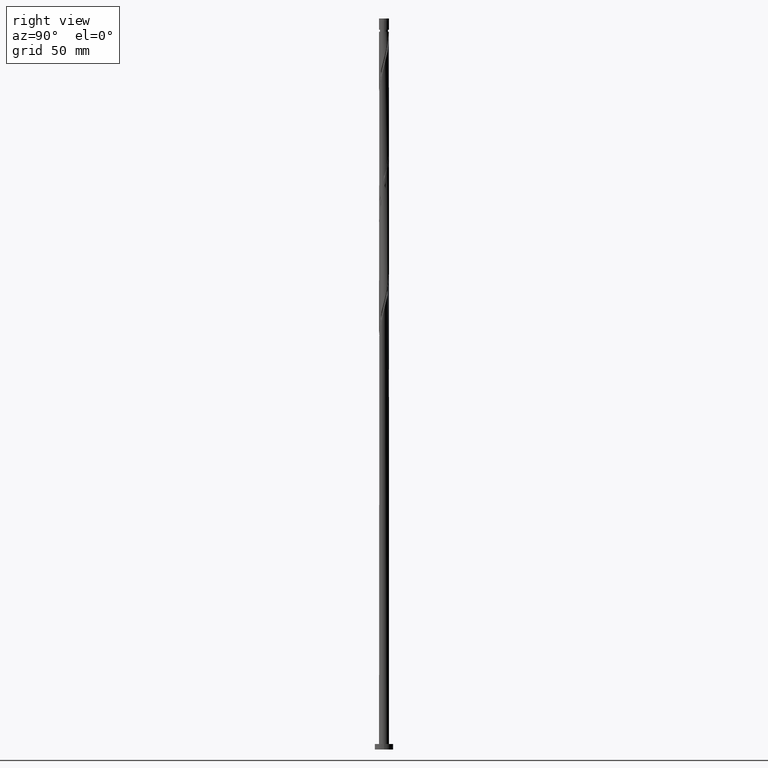
[diagram: clean part render]
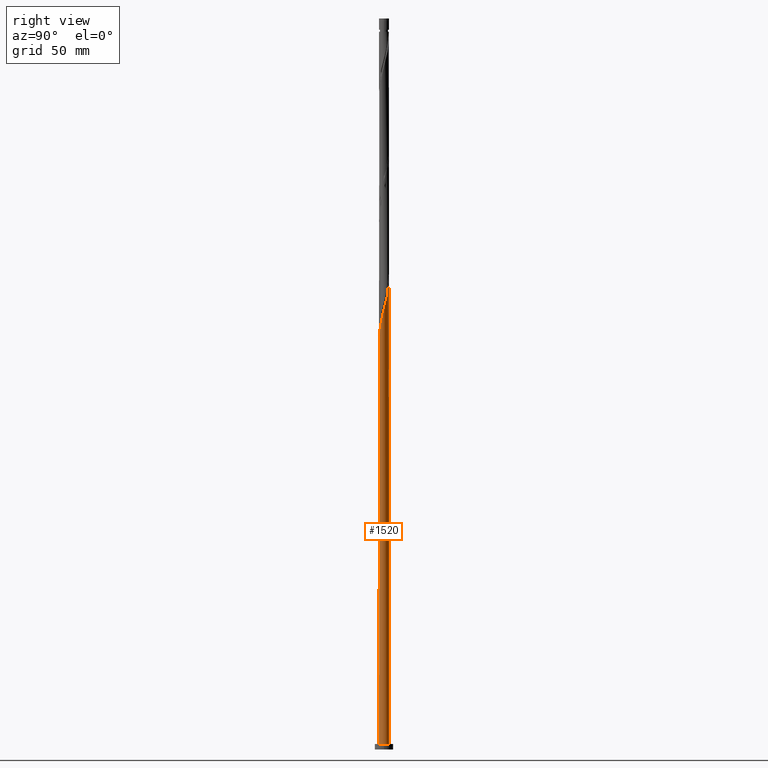
[diagram: same view with one face highlighted and labeled with its STEP entity id]
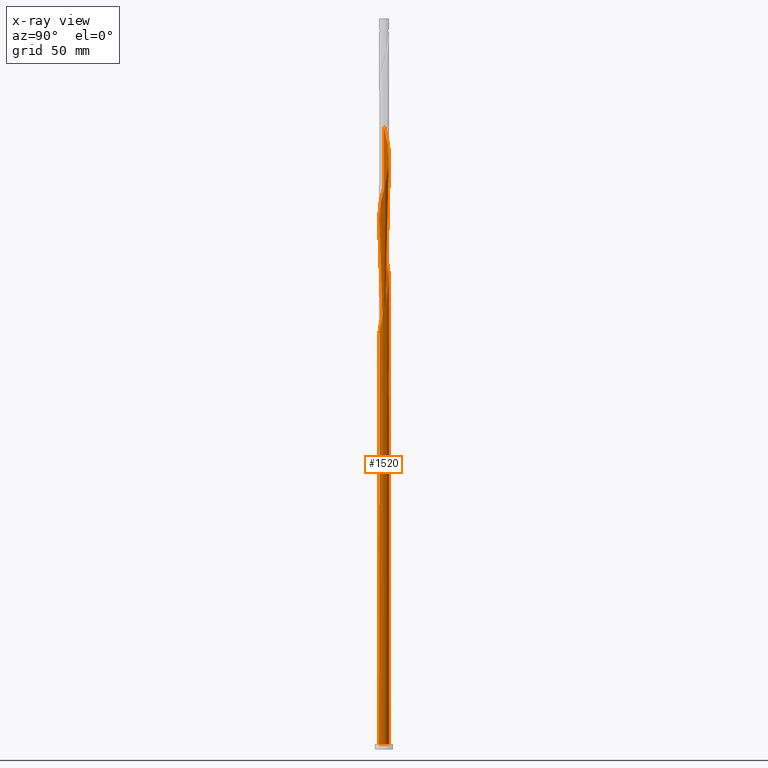
[diagram: x-ray of the same camera — body ghosted, the highlighted face saturated]
A machine part, right view. The second image highlights one B-rep face of the part: STEP entity #1520.
The next image is the same camera in x-ray: the body ghosted, the highlighted face saturated — about 0% of this face is hidden behind the body in this view.
In plain terms, the highlighted cylindrical surface (bore or boss wall) has radius 2.75 mm, axis along (-0, -0, -1).
Its self-contained STEP definition (entity closure, byte-faithful):
#3 = CARTESIAN_POINT ( 'NONE',  ( -2.709844813423679444, -0.5502574583398188723, 276.1119434343397074 ) ) ;
#17 = CARTESIAN_POINT ( 'NONE',  ( -1.141352294733356976, -2.501962217801643629, 286.1119434343396506 ) ) ;
#28 = CARTESIAN_POINT ( 'NONE',  ( 1.404319120299016177, 2.382001257694969620, 251.6674989898952788 ) ) ;
#31 = CARTESIAN_POINT ( 'NONE',  ( -1.831459344255980115, 2.071665719568499320, 198.3341656565619076 ) ) ;
#36 = CARTESIAN_POINT ( 'NONE',  ( 2.607560008403387197, -0.8735735816606113868, 237.2230545454507649 ) ) ;
#38 = CARTESIAN_POINT ( 'NONE',  ( -2.699376291652123783, 0.5995079810680117305, 205.0008323232285647 ) ) ;
#44 = CARTESIAN_POINT ( 'NONE',  ( 2.765033161159833774, -0.02517540435167804971, 307.2230545454508501 ) ) ;
#45 = CARTESIAN_POINT ( 'NONE',  ( -1.095606522655231618, 2.522329547762411028, 195.0008323232285647 ) ) ;
#59 = FACE_OUTER_BOUND ( 'NONE', #1684, .T. ) ;
#61 = VERTEX_POINT ( 'NONE', #287 ) ;
#71 = CARTESIAN_POINT ( 'NONE',  ( -1.360714040860819596, 2.407176662046646598, 329.4452767676729650 ) ) ;
#94 = CARTESIAN_POINT ( 'NONE',  ( 2.750000000000000000, 0.000000000000000000, 3.000000000000000000 ) ) ;
#110 = CARTESIAN_POINT ( 'NONE',  ( 0.8304990044496428636, -2.637482433478177235, 227.2230545454507649 ) ) ;
#117 = CARTESIAN_POINT ( 'NONE',  ( -2.750000000000003109, -0.1315709980385585121, 207.8283820497155716 ) ) ;
#132 = CARTESIAN_POINT ( 'NONE',  ( -2.251756548787004153, -1.604878384268619618, 213.8897212121174789 ) ) ;
#133 = AXIS2_PLACEMENT_3D ( 'NONE', #310, #507, #912 ) ;
#143 = CARTESIAN_POINT ( 'NONE',  ( -0.3140621580726320472, -2.747254473863784074, 222.7786101010063362 ) ) ;
#159 = CARTESIAN_POINT ( 'NONE',  ( -2.732204726405978334, 0.3123416927098441320, 272.7786101010063362 ) ) ;
#168 = CARTESIAN_POINT ( 'NONE',  ( 1.831459344255979671, -2.071665719568499320, 298.3341656565619360 ) ) ;
#181 = CARTESIAN_POINT ( 'NONE',  ( -0.5472430904086448278, 2.695000000000002505, 259.4452767676730218 ) ) ;
#191 = CARTESIAN_POINT ( 'NONE',  ( 2.699376291652122450, -0.5995079810680130628, 305.0008323232285647 ) ) ;
#200 = CARTESIAN_POINT ( 'NONE',  ( -2.737438987291756831, -0.2625410269940704477, 275.0008323232286784 ) ) ;
#202 = CARTESIAN_POINT ( 'NONE',  ( -0.8304990044496439738, 2.637482433478177235, 193.8897212121174221 ) ) ;
#205 = VERTEX_POINT ( 'NONE', #406 ) ;
#208 = CARTESIAN_POINT ( 'NONE',  ( 2.251756548787004597, 1.604878384268618730, 313.8897212121174221 ) ) ;
#218 = CARTESIAN_POINT ( 'NONE',  ( -2.222161085990171703, 1.645613044190155083, 333.8897212121174789 ) ) ;
#226 = CARTESIAN_POINT ( 'NONE',  ( 0.8783854691677005500, 2.621923177908317193, 320.5563878787841077 ) ) ;
#232 = CARTESIAN_POINT ( 'NONE',  ( -2.515743725154651056, 1.147639182253208823, 336.1119434343397074 ) ) ;
#251 = CARTESIAN_POINT ( 'NONE',  ( 1.095606522655230508, -2.522329547762411917, 228.3341656565619360 ) ) ;
#264 = EDGE_CURVE ( 'NONE', #1103, #698, #1164, .T. ) ;
#279 = CARTESIAN_POINT ( 'NONE',  ( -2.709844813423679444, -0.5502574583398188723, 209.4452767676730502 ) ) ;
#287 = CARTESIAN_POINT ( 'NONE',  ( -2.750000000000003553, 9.865954177638731195E-16, 340.6531668574847913 ) ) ;
#294 = CARTESIAN_POINT ( 'NONE',  ( -0.02503749085249342560, -2.749886020192806146, 223.8897212121174505 ) ) ;
#299 = CARTESIAN_POINT ( 'NONE',  ( 0.2639871763676471250, 2.752517566521825110, 193.8897212121174789 ) ) ;
#307 = CARTESIAN_POINT ( 'NONE',  ( 2.737438987291756831, 0.2625410269940689489, 241.6674989898952219 ) ) ;
#310 = CARTESIAN_POINT ( 'NONE',  ( 0.000000000000000000, 0.000000000000000000, 3.000000000000000000 ) ) ;
#317 = CARTESIAN_POINT ( 'NONE',  ( -1.095606522655231618, 2.522329547762411028, 261.6674989898951935 ) ) ;
#328 = CARTESIAN_POINT ( 'NONE',  ( -1.596086692558399855, 2.239421190807572959, 263.8897212121174789 ) ) ;
#330 = CARTESIAN_POINT ( 'NONE',  ( -2.515743725154651056, 1.147639182253208823, 202.7786101010063931 ) ) ;
#337 = EDGE_CURVE ( 'NONE', #205, #698, #1547, .T. ) ;
#339 = CARTESIAN_POINT ( 'NONE',  ( -0.3140621580726320472, -2.747254473863784074, 289.4452767676730787 ) ) ;
#344 = DIRECTION ( 'NONE',  ( -1.000000000000000000, 0.000000000000000000, 0.000000000000000000 ) ) ;
#347 = CARTESIAN_POINT ( 'NONE',  ( 1.868877287202480364, 2.037974452410165060, 249.4452767676729934 ) ) ;
#372 = CARTESIAN_POINT ( 'NONE',  ( 1.404319120299016177, 2.382001257694969620, 318.3341656565621065 ) ) ;
#388 = ORIENTED_EDGE ( 'NONE', *, *, #652, .F. ) ;
#402 = EDGE_CURVE ( 'NONE', #1796, #571, #979, .T. ) ;
#403 = CARTESIAN_POINT ( 'NONE',  ( 0.02503749085249385928, 2.749886020192806146, 323.8897212121173652 ) ) ;
#406 = CARTESIAN_POINT ( 'NONE',  ( -0.5472430904086447168, 2.695000000000002949, 192.7786101010063362 ) ) ;
#425 = CARTESIAN_POINT ( 'NONE',  ( -1.868877287202477033, 2.037974452410163728, 202.7786101010063931 ) ) ;
#436 = CARTESIAN_POINT ( 'NONE',  ( -2.060316917994741814, -1.821426418339391784, 215.0008323232285932 ) ) ;
#444 = DIRECTION ( 'NONE',  ( 0.000000000000000000, 1.000000000000000000, -7.065055611250996281E-14 ) ) ;
#466 = CARTESIAN_POINT ( 'NONE',  ( -2.623034028743242985, -0.8259494440067236543, 277.2230545454507364 ) ) ;
#470 = CARTESIAN_POINT ( 'NONE',  ( -1.636598203750744496, 2.209987855052564232, 201.6674989898951651 ) ) ;
#474 = CARTESIAN_POINT ( 'NONE',  ( 1.141352294733356976, 2.501962217801644073, 252.7786101010063362 ) ) ;
#477 = DIRECTION ( 'NONE',  ( -0.000000000000000000, -0.000000000000000000, -1.000000000000000000 ) ) ;
#483 = CARTESIAN_POINT ( 'NONE',  ( 2.368952405572412268, -1.396626113221682841, 301.6674989898951935 ) ) ;
#487 = CARTESIAN_POINT ( 'NONE',  ( -2.026810215123076464, 1.858639381879326979, 199.4452767676729650 ) ) ;
#494 = DIRECTION ( 'NONE',  ( -0.000000000000000000, -0.000000000000000000, -1.000000000000000000 ) ) ;
#496 = CARTESIAN_POINT ( 'NONE',  ( -2.607560008403387197, 0.8735735816606103876, 270.5563878787841077 ) ) ;
#505 = CARTESIAN_POINT ( 'NONE',  ( 0.8783854691677005500, 2.621923177908317193, 253.8897212121173936 ) ) ;
#507 = DIRECTION ( 'NONE',  ( 0.000000000000000000, 0.000000000000000000, 1.000000000000000000 ) ) ;
#515 = EDGE_CURVE ( 'NONE', #61, #1103, #1657, .T. ) ;
#516 = CARTESIAN_POINT ( 'NONE',  ( -0.8304990044496439738, 2.637482433478177235, 327.2230545454509070 ) ) ;
#525 = CARTESIAN_POINT ( 'NONE',  ( 0.3140621580726324913, 2.747254473863784074, 322.7786101010063931 ) ) ;
#533 = CARTESIAN_POINT ( 'NONE',  ( 0.000000000000000000, 0.000000000000000000, 3.000000000000000000 ) ) ;
#571 = VERTEX_POINT ( 'NONE', #1372 ) ;
#581 = ORIENTED_EDGE ( 'NONE', *, *, #1558, .T. ) ;
#583 =( BOUNDED_CURVE ( )  B_SPLINE_CURVE ( 2, ( #1070, #202, #45, #1352, #1231, #31, #487, #1651, #1362, #330, #932, #38, #643, #1225, #1107 ),
 .UNSPECIFIED., .F., .T. ) 
 B_SPLINE_CURVE_WITH_KNOTS ( ( 3, 2, 2, 2, 2, 2, 2, 3 ),
 ( 0.000000000000000000, 0.008333333333333303727, 0.01666666666666671848, 0.02500000000000002220, 0.03333333333333332593, 0.04166666666666662966, 0.05000000000000004441, 0.05452860127731133655 ),
 .UNSPECIFIED. ) 
 CURVE ( )  GEOMETRIC_REPRESENTATION_ITEM ( )  RATIONAL_B_SPLINE_CURVE ( ( 0.9090909090909665702, 0.9041108139712148439, 0.9090909090909665702, 0.9041108139712148439, 0.9090909090909665702, 0.9041108139712148439, 0.9090909090909665702, 0.9041108139712148439, 0.9090909090909665702, 0.9041108139712148439, 0.9090909090909665702, 0.9041108139712148439, 0.9090909090909665702, 0.9063845652765137872, 0.9066196499552549026 ) ) 
 REPRESENTATION_ITEM ( '' )  );
#584 = CARTESIAN_POINT ( 'NONE',  ( -2.060316917994738262, 1.821426418339390230, 203.8897212121173936 ) ) ;
#588 = CARTESIAN_POINT ( 'NONE',  ( -1.404319120299014845, -2.382001257694969620, 218.3341656565619076 ) ) ;
#598 = CARTESIAN_POINT ( 'NONE',  ( -2.750000000000000000, -1.614428865431802238E-15, 211.5707200111945383 ) ) ;
#602 = CARTESIAN_POINT ( 'NONE',  ( -2.536223244062801196, 1.101641429673628103, 207.2230545454507649 ) ) ;
#612 = CARTESIAN_POINT ( 'NONE',  ( -2.393989896424904007, -1.353259906971123971, 279.4452767676730218 ) ) ;
#615 = CARTESIAN_POINT ( 'NONE',  ( -2.623034028743237212, 0.8259494440067235432, 208.3341656565618791 ) ) ;
#621 = CARTESIAN_POINT ( 'NONE',  ( -0.5962238136201662986, -2.684588825886050856, 288.3341656565618791 ) ) ;
#629 = CARTESIAN_POINT ( 'NONE',  ( 0.8304990044496428636, -2.637482433478177235, 293.8897212121175357 ) ) ;
#641 = CARTESIAN_POINT ( 'NONE',  ( -1.831459344255980115, 2.071665719568499320, 265.0008323232285647 ) ) ;
#643 = CARTESIAN_POINT ( 'NONE',  ( -2.732204726405978334, 0.3123416927098441320, 206.1119434343396790 ) ) ;
#646 = CARTESIAN_POINT ( 'NONE',  ( -2.060316917994741814, -1.821426418339391784, 281.6674989898952504 ) ) ;
#652 = EDGE_CURVE ( 'NONE', #205, #1502, #583, .T. ) ;
#657 = DIRECTION ( 'NONE',  ( 0.000000000000000000, 0.000000000000000000, 1.000000000000000000 ) ) ;
#689 = CARTESIAN_POINT ( 'NONE',  ( 2.709844813423679444, 0.5502574583398184283, 309.4452767676730787 ) ) ;
#698 = VERTEX_POINT ( 'NONE', #1689 ) ;
#712 = CARTESIAN_POINT ( 'NONE',  ( 1.831459344255979671, -2.071665719568499320, 231.6674989898952788 ) ) ;
#721 = CARTESIAN_POINT ( 'NONE',  ( -1.868877287202480142, -2.037974452410165060, 216.1119434343397359 ) ) ;
#727 = AXIS2_PLACEMENT_3D ( 'NONE', #1745, #1162, #444 ) ;
#752 = CARTESIAN_POINT ( 'NONE',  ( -0.3140621580726310480, 2.747254473863780522, 196.1119434343396790 ) ) ;
#758 = CARTESIAN_POINT ( 'NONE',  ( -1.636598203750747604, -2.209987855052566008, 283.8897212121175357 ) ) ;
#772 = CARTESIAN_POINT ( 'NONE',  ( 2.026810215123076464, -1.858639381879326979, 299.4452767676730787 ) ) ;
#781 = CARTESIAN_POINT ( 'NONE',  ( -2.368952405572412268, 1.396626113221681953, 268.3341656565618791 ) ) ;
#790 = CARTESIAN_POINT ( 'NONE',  ( -1.360714040860819596, 2.407176662046646598, 262.7786101010063362 ) ) ;
#804 = CARTESIAN_POINT ( 'NONE',  ( -2.026810215123076464, 1.858639381879326979, 332.7786101010063362 ) ) ;
#821 = CARTESIAN_POINT ( 'NONE',  ( -2.699376291652123783, 0.5995079810680117305, 338.3341656565620497 ) ) ;
#829 = AXIS2_PLACEMENT_3D ( 'NONE', #533, #657, #1407 ) ;
#840 = CARTESIAN_POINT ( 'NONE',  ( -2.732204726405978334, 0.3123416927098441320, 339.4452767676730218 ) ) ;
#844 =( BOUNDED_CURVE ( )  B_SPLINE_CURVE ( 2, ( #1158, #117, #1043, #279, #879, #1143, #1614, #132, #436, #721, #1762, #588, #1170, #1007, #1454, #143, #294, #1574, #1867, #110, #251, #1428, #1592, #712, #1286, #1149, #1295, #1023, #36, #930, #1806, #1359, #307, #909, #1229, #1052, #1499, #1479, #1089, #347, #1781, #28, #474, #505, #1078, #1649, #1325, #1664, #181, #1213, #317, #790, #328, #641, #946, #1222, #781, #1801, #496, #1339, #159, #1518, #200, #3, #466, #1625, #612, #1192, #646, #1656, #758, #1773, #17, #1349, #621, #339, #1507, #1204, #1059, #629, #1634, #917, #1489, #168, #772, #1793, #483, #1067, #938, #191, #1370, #44, #1257, #689, #966, #1686, #1124, #208, #1534, #1386, #1095, #372, #1411, #226, #988, #525, #403, #1560, #1707, #516, #1546, #71, #1846, #1715, #804, #218, #1840, #232, #1677, #821, #840, #1235, #999 ),
 .UNSPECIFIED., .F., .T. ) 
 B_SPLINE_CURVE_WITH_KNOTS ( ( 3, 2, 2, 2, 2, 2, 2, 2, 2, 2, 2, 2, 2, 2, 2, 2, 2, 2, 2, 2, 2, 2, 2, 2, 2, 2, 2, 2, 2, 2, 2, 2, 2, 2, 2, 2, 2, 2, 2, 2, 2, 2, 2, 2, 2, 2, 2, 2, 2, 2, 2, 2, 2, 2, 2, 2, 2, 2, 2, 2, 2, 3 ),
 ( 0.05452860127731133655, 0.05833333333333334814, 0.06666666666666665186, 0.07499999999999995559, 0.08333333333333337034, 0.09166666666666667407, 0.09999999999999997780, 0.1083333333333332815, 0.1166666666666666963, 0.1250000000000000000, 0.1333333333333333037, 0.1416666666666667185, 0.1500000000000000222, 0.1583333333333333259, 0.1666666666666666297, 0.1750000000000000444, 0.1833333333333333481, 0.1916666666666666519, 0.1999999999999999556, 0.2083333333333333703, 0.2166666666666666741, 0.2249999999999999778, 0.2333333333333332815, 0.2416666666666666963, 0.2500000000000000000, 0.2583333333333333037, 0.2666666666666667185, 0.2750000000000000222, 0.2833333333333333259, 0.2916666666666666297, 0.3000000000000000444, 0.3083333333333333481, 0.3166666666666666519, 0.3249999999999999556, 0.3333333333333333703, 0.3416666666666666741, 0.3499999999999999778, 0.3583333333333332815, 0.3666666666666666963, 0.3750000000000000000, 0.3833333333333333037, 0.3916666666666667185, 0.4000000000000000222, 0.4083333333333333259, 0.4166666666666666297, 0.4250000000000000444, 0.4333333333333333481, 0.4416666666666666519, 0.4499999999999999556, 0.4583333333333333703, 0.4666666666666666741, 0.4749999999999999778, 0.4833333333333332815, 0.4916666666666666963, 0.5000000000000000000, 0.5083333333333333037, 0.5166666666666666075, 0.5250000000000000222, 0.5333333333333333259, 0.5416666666666667407, 0.5500000000000000444, 0.5545286012773116280 ),
 .UNSPECIFIED. ) 
 CURVE ( )  GEOMETRIC_REPRESENTATION_ITEM ( )  RATIONAL_B_SPLINE_CURVE ( ( 0.9066196499552549026, 0.9068171577856676269, 0.9090909090909665702, 0.9041108139712148439, 0.9090909090909665702, 0.9041108139712148439, 0.9090909090909665702, 0.9041108139712148439, 0.9090909090909665702, 0.9041108139712148439, 0.9090909090909665702, 0.9041108139712148439, 0.9090909090909665702, 0.9041108139712148439, 0.9090909090909665702, 0.9041108139712148439, 0.9090909090909665702, 0.9041108139712148439, 0.9090909090909665702, 0.9041108139712148439, 0.9090909090909665702, 0.9041108139712148439, 0.9090909090909665702, 0.9041108139712148439, 0.9090909090909665702, 0.9041108139712148439, 0.9090909090909665702, 0.9041108139712148439, 0.9090909090909665702, 0.9041108139712148439, 0.9090909090909665702, 0.9041108139712148439, 0.9090909090909665702, 0.9041108139712148439, 0.9090909090909665702, 0.9041108139712148439, 0.9090909090909665702, 0.9041108139712148439, 0.9090909090909665702, 0.9041108139712148439, 0.9090909090909665702, 0.9041108139712148439, 0.9090909090909665702, 0.9041108139712148439, 0.9090909090909665702, 0.9041108139712148439, 0.9090909090909665702, 0.9041108139712148439, 0.9090909090909665702, 0.9041108139712148439, 0.9090909090909665702, 0.9041108139712148439, 0.9090909090909665702, 0.9041108139712148439, 0.9090909090909665702, 0.9041108139712148439, 0.9090909090909665702, 0.9041108139712148439, 0.9090909090909665702, 0.9041108139712148439, 0.9090909090909665702, 0.9041108139712148439, 0.9090909090909665702, 0.9041108139712148439, 0.9090909090909665702, 0.9041108139712148439, 0.9090909090909665702, 0.9041108139712148439, 0.9090909090909665702, 0.9041108139712148439, 0.9090909090909665702, 0.9041108139712148439, 0.9090909090909665702, 0.9041108139712148439, 0.9090909090909665702, 0.9041108139712148439, 0.9090909090909665702, 0.9041108139712148439, 0.9090909090909665702, 0.9041108139712148439, 0.9090909090909665702, 0.9041108139712148439, 0.9090909090909665702, 0.9041108139712148439, 0.9090909090909665702, 0.9041108139712148439, 0.9090909090909665702, 0.9041108139712148439, 0.9090909090909665702, 0.9041108139712148439, 0.9090909090909665702, 0.9041108139712148439, 0.9090909090909665702, 0.9041108139712148439, 0.9090909090909665702, 0.9041108139712148439, 0.9090909090909665702, 0.9041108139712148439, 0.9090909090909665702, 0.9041108139712148439, 0.9090909090909665702, 0.9041108139712148439, 0.9090909090909665702, 0.9041108139712148439, 0.9090909090909665702, 0.9041108139712148439, 0.9090909090909665702, 0.9041108139712148439, 0.9090909090909665702, 0.9041108139712148439, 0.9090909090909665702, 0.9041108139712148439, 0.9090909090909665702, 0.9041108139712148439, 0.9090909090909665702, 0.9041108139712148439, 0.9090909090909665702, 0.9041108139712148439, 0.9090909090909665702, 0.9041108139712148439, 0.9090909090909665702, 0.9063845652765136762, 0.9066196499552549026 ) ) 
 REPRESENTATION_ITEM ( '' )  );
#856 = CIRCLE ( 'NONE', #829, 2.750000000000000000 ) ;
#879 = CARTESIAN_POINT ( 'NONE',  ( -2.623034028743242985, -0.8259494440067236543, 210.5563878787841077 ) ) ;
#881 = CARTESIAN_POINT ( 'NONE',  ( -1.141352294733354977, 2.501962217801640076, 199.4452767676730218 ) ) ;
#909 = CARTESIAN_POINT ( 'NONE',  ( 2.709844813423679444, 0.5502574583398184283, 242.7786101010063931 ) ) ;
#912 = DIRECTION ( 'NONE',  ( 1.000000000000000000, 0.000000000000000000, 0.000000000000000000 ) ) ;
#917 = CARTESIAN_POINT ( 'NONE',  ( 1.360714040860819596, -2.407176662046646598, 296.1119434343396506 ) ) ;
#930 = CARTESIAN_POINT ( 'NONE',  ( 2.699376291652122450, -0.5995079810680130628, 238.3341656565619644 ) ) ;
#932 = CARTESIAN_POINT ( 'NONE',  ( -2.607560008403387197, 0.8735735816606103876, 203.8897212121174505 ) ) ;
#938 = CARTESIAN_POINT ( 'NONE',  ( 2.607560008403387197, -0.8735735816606113868, 303.8897212121173652 ) ) ;
#946 = CARTESIAN_POINT ( 'NONE',  ( -2.026810215123076464, 1.858639381879326979, 266.1119434343397074 ) ) ;
#950 = CARTESIAN_POINT ( 'NONE',  ( -2.750000000000000000, 0.000000000000000000, 400.0000000000000000 ) ) ;
#966 = CARTESIAN_POINT ( 'NONE',  ( 2.623034028743242985, 0.8259494440067226551, 310.5563878787840508 ) ) ;
#968 = ORIENTED_EDGE ( 'NONE', *, *, #1293, .T. ) ;
#979 = CIRCLE ( 'NONE', #133, 2.750000000000000000 ) ;
#988 = CARTESIAN_POINT ( 'NONE',  ( 0.5962238136201674088, 2.684588825886050856, 321.6674989898953072 ) ) ;
#999 = CARTESIAN_POINT ( 'NONE',  ( -2.750000000000003553, 9.865954177638731195E-16, 340.6531668574847913 ) ) ;
#1007 = CARTESIAN_POINT ( 'NONE',  ( -0.8783854691676998838, -2.621923177908317193, 220.5563878787841645 ) ) ;
#1016 = CARTESIAN_POINT ( 'NONE',  ( -1.404319120299012180, 2.382001257694966068, 200.5563878787841645 ) ) ;
#1023 = CARTESIAN_POINT ( 'NONE',  ( 2.515743725154651056, -1.147639182253209045, 236.1119434343397074 ) ) ;
#1043 = CARTESIAN_POINT ( 'NONE',  ( -2.737438987291756831, -0.2625410269940704477, 208.3341656565619360 ) ) ;
#1052 = CARTESIAN_POINT ( 'NONE',  ( 2.536223244062806081, 1.101641429673626549, 245.0008323232285932 ) ) ;
#1059 = CARTESIAN_POINT ( 'NONE',  ( 0.5472430904086451608, -2.695000000000002505, 292.7786101010063931 ) ) ;
#1067 = CARTESIAN_POINT ( 'NONE',  ( 2.515743725154651056, -1.147639182253209045, 302.7786101010063362 ) ) ;
#1070 = CARTESIAN_POINT ( 'NONE',  ( -0.5472430904086447168, 2.695000000000002505, 192.7786101010063078 ) ) ;
#1078 = CARTESIAN_POINT ( 'NONE',  ( 0.5962238136201674088, 2.684588825886050856, 255.0008323232285647 ) ) ;
#1089 = CARTESIAN_POINT ( 'NONE',  ( 2.060316917994743147, 1.821426418339391118, 248.3341656565619076 ) ) ;
#1095 = CARTESIAN_POINT ( 'NONE',  ( 1.636598203750747604, 2.209987855052566008, 317.2230545454506796 ) ) ;
#1102 = CYLINDRICAL_SURFACE ( 'NONE', #1270, 2.750000000000000000 ) ;
#1103 = VERTEX_POINT ( 'NONE', #598 ) ;
#1107 = CARTESIAN_POINT ( 'NONE',  ( -2.750000000000003109, 2.765456852822978144E-15, 207.3198335241515053 ) ) ;
#1124 = CARTESIAN_POINT ( 'NONE',  ( 2.393989896424904007, 1.353259906971123749, 312.7786101010063931 ) ) ;
#1137 = ORIENTED_EDGE ( 'NONE', *, *, #1558, .F. ) ;
#1143 = CARTESIAN_POINT ( 'NONE',  ( -2.536223244062805193, -1.101641429673628103, 211.6674989898952504 ) ) ;
#1149 = CARTESIAN_POINT ( 'NONE',  ( 2.222161085990171259, -1.645613044190155527, 233.8897212121174505 ) ) ;
#1158 = CARTESIAN_POINT ( 'NONE',  ( -2.750000000000003109, 2.765456852822978144E-15, 207.3198335241515053 ) ) ;
#1162 = DIRECTION ( 'NONE',  ( -2.241082117105144448E-29, -7.569702440626064108E-14, -1.000000000000000000 ) ) ;
#1164 =( BOUNDED_CURVE ( )  B_SPLINE_CURVE ( 2, ( #1320, #1754, #1892, #1440, #615, #602, #1765, #1576, #584, #425, #470, #1016, #881, #1194, #1172, #752, #1594, #299, #1183 ),
 .UNSPECIFIED., .F., .T. ) 
 B_SPLINE_CURVE_WITH_KNOTS ( ( 3, 2, 2, 2, 2, 2, 2, 2, 2, 3 ),
 ( 0.9295286012773112949, 0.9333333333333333481, 0.9416666666666666519, 0.9499999999999999556, 0.9583333333333333703, 0.9666666666666666741, 0.9749999999999999778, 0.9833333333333332815, 0.9916666666666666963, 1.000000000000000000 ),
 .UNSPECIFIED. ) 
 CURVE ( )  GEOMETRIC_REPRESENTATION_ITEM ( )  RATIONAL_B_SPLINE_CURVE ( ( 0.9066196499552494625, 0.9068171577856620758, 0.9090909090909612411, 0.9041108139712092928, 0.9090909090909612411, 0.9041108139712092928, 0.9090909090909612411, 0.9041108139712092928, 0.9090909090909612411, 0.9041108139712092928, 0.9090909090909612411, 0.9041108139712092928, 0.9090909090909612411, 0.9041108139712092928, 0.9090909090909612411, 0.9041108139712092928, 0.9090909090909612411, 0.9041108139712092928, 0.9090909090909612411 ) ) 
 REPRESENTATION_ITEM ( '' )  );
#1170 = CARTESIAN_POINT ( 'NONE',  ( -1.141352294733356976, -2.501962217801643629, 219.4452767676730502 ) ) ;
#1172 = CARTESIAN_POINT ( 'NONE',  ( -0.5962238136201641892, 2.684588825886046859, 197.2230545454507364 ) ) ;
#1183 = CARTESIAN_POINT ( 'NONE',  ( 0.5472430904086457160, 2.694999999999999840, 192.7786101010063362 ) ) ;
#1192 = CARTESIAN_POINT ( 'NONE',  ( -2.251756548787004153, -1.604878384268619618, 280.5563878787841645 ) ) ;
#1194 = CARTESIAN_POINT ( 'NONE',  ( -0.8783854691676976634, 2.621923177908314528, 198.3341656565619076 ) ) ;
#1204 = CARTESIAN_POINT ( 'NONE',  ( 0.2639871763676464034, -2.752517566521829551, 291.6674989898953072 ) ) ;
#1211 = ORIENTED_EDGE ( 'NONE', *, *, #1240, .F. ) ;
#1213 = CARTESIAN_POINT ( 'NONE',  ( -0.8304990044496439738, 2.637482433478177235, 260.5563878787841077 ) ) ;
#1222 = CARTESIAN_POINT ( 'NONE',  ( -2.222161085990171703, 1.645613044190155083, 267.2230545454507933 ) ) ;
#1225 = CARTESIAN_POINT ( 'NONE',  ( -2.750000000000003553, 0.1566777779776925561, 206.7142422147669549 ) ) ;
#1229 = CARTESIAN_POINT ( 'NONE',  ( 2.623034028743242985, 0.8259494440067226551, 243.8897212121175073 ) ) ;
#1231 = CARTESIAN_POINT ( 'NONE',  ( -1.596086692558399855, 2.239421190807572959, 197.2230545454507649 ) ) ;
#1235 = CARTESIAN_POINT ( 'NONE',  ( -2.750000000000004441, 0.1566777779776825086, 340.0475755481002125 ) ) ;
#1240 = EDGE_CURVE ( 'NONE', #1502, #61, #844, .T. ) ;
#1248 = CARTESIAN_POINT ( 'NONE',  ( -2.750000000000003109, 2.765456852822978144E-15, 207.3198335241515053 ) ) ;
#1257 = CARTESIAN_POINT ( 'NONE',  ( 2.737438987291756831, 0.2625410269940689489, 308.3341656565619928 ) ) ;
#1270 = AXIS2_PLACEMENT_3D ( 'NONE', #1392, #1683, #344 ) ;
#1286 = CARTESIAN_POINT ( 'NONE',  ( 2.026810215123076464, -1.858639381879326979, 232.7786101010063931 ) ) ;
#1293 = EDGE_CURVE ( 'NONE', #571, #1796, #856, .T. ) ;
#1295 = CARTESIAN_POINT ( 'NONE',  ( 2.368952405572412268, -1.396626113221682841, 235.0008323232285932 ) ) ;
#1312 = ORIENTED_EDGE ( 'NONE', *, *, #515, .F. ) ;
#1320 = CARTESIAN_POINT ( 'NONE',  ( -2.750000000000000000, -1.614428865431802435E-15, 211.5707200111945383 ) ) ;
#1325 = CARTESIAN_POINT ( 'NONE',  ( 0.02503749085249385928, 2.749886020192806146, 257.2230545454507933 ) ) ;
#1339 = CARTESIAN_POINT ( 'NONE',  ( -2.699376291652123783, 0.5995079810680117305, 271.6674989898951935 ) ) ;
#1349 = CARTESIAN_POINT ( 'NONE',  ( -0.8783854691676998838, -2.621923177908317193, 287.2230545454508501 ) ) ;
#1352 = CARTESIAN_POINT ( 'NONE',  ( -1.360714040860819596, 2.407176662046646598, 196.1119434343397074 ) ) ;
#1359 = CARTESIAN_POINT ( 'NONE',  ( 2.765033161159833774, -0.02517540435167804971, 240.5563878787840792 ) ) ;
#1362 = CARTESIAN_POINT ( 'NONE',  ( -2.368952405572412268, 1.396626113221681953, 201.6674989898952788 ) ) ;
#1367 = CARTESIAN_POINT ( 'NONE',  ( -2.750000000000000000, 0.000000000000000000, 400.0000000000000000 ) ) ;
#1368 = ORIENTED_EDGE ( 'NONE', *, *, #402, .T. ) ;
#1370 = CARTESIAN_POINT ( 'NONE',  ( 2.732204726405978779, -0.3123416927098444651, 306.1119434343396506 ) ) ;
#1372 = CARTESIAN_POINT ( 'NONE',  ( -2.750000000000000000, 0.000000000000000000, 3.000000000000000000 ) ) ;
#1386 = CARTESIAN_POINT ( 'NONE',  ( 1.868877287202480364, 2.037974452410165060, 316.1119434343397074 ) ) ;
#1392 = CARTESIAN_POINT ( 'NONE',  ( 0.000000000000000000, 0.000000000000000000, 400.0000000000000000 ) ) ;
#1407 = DIRECTION ( 'NONE',  ( 1.000000000000000000, 0.000000000000000000, 0.000000000000000000 ) ) ;
#1411 = CARTESIAN_POINT ( 'NONE',  ( 1.141352294733356976, 2.501962217801644073, 319.4452767676729650 ) ) ;
#1428 = CARTESIAN_POINT ( 'NONE',  ( 1.360714040860819596, -2.407176662046646598, 229.4452767676730502 ) ) ;
#1440 = CARTESIAN_POINT ( 'NONE',  ( -2.709844813423676335, 0.5502574583398186503, 209.4452767676730502 ) ) ;
#1454 = CARTESIAN_POINT ( 'NONE',  ( -0.5962238136201662986, -2.684588825886050856, 221.6674989898952504 ) ) ;
#1479 = CARTESIAN_POINT ( 'NONE',  ( 2.251756548787004597, 1.604878384268618730, 247.2230545454508217 ) ) ;
#1489 = CARTESIAN_POINT ( 'NONE',  ( 1.596086692558398745, -2.239421190807573403, 297.2230545454507364 ) ) ;
#1499 = CARTESIAN_POINT ( 'NONE',  ( 2.393989896424904007, 1.353259906971123749, 246.1119434343396790 ) ) ;
#1502 = VERTEX_POINT ( 'NONE', #1248 ) ;
#1507 = CARTESIAN_POINT ( 'NONE',  ( -0.02503749085249342560, -2.749886020192806146, 290.5563878787840508 ) ) ;
#1512 = LINE ( 'NONE', #1367, #1734 ) ;
#1518 = CARTESIAN_POINT ( 'NONE',  ( -2.765033161159833774, 0.02517540435167719623, 273.8897212121174789 ) ) ;
#1520 = ADVANCED_FACE ( 'NONE', ( #59 ), #1102, .T. ) ;
#1534 = CARTESIAN_POINT ( 'NONE',  ( 2.060316917994743147, 1.821426418339391118, 315.0008323232286784 ) ) ;
#1546 = CARTESIAN_POINT ( 'NONE',  ( -1.095606522655231618, 2.522329547762411028, 328.3341656565619928 ) ) ;
#1547 = CIRCLE ( 'NONE', #727, 2.750000000000000000 ) ;
#1558 = EDGE_CURVE ( 'NONE', #1502, #571, #1512, .T. ) ;
#1560 = CARTESIAN_POINT ( 'NONE',  ( -0.2639871763676447936, 2.752517566521829995, 325.0008323232285079 ) ) ;
#1574 = CARTESIAN_POINT ( 'NONE',  ( 0.2639871763676464034, -2.752517566521829551, 225.0008323232285647 ) ) ;
#1576 = CARTESIAN_POINT ( 'NONE',  ( -2.251756548787000156, 1.604878384268618063, 205.0008323232285932 ) ) ;
#1587 = ORIENTED_EDGE ( 'NONE', *, *, #337, .T. ) ;
#1592 = CARTESIAN_POINT ( 'NONE',  ( 1.596086692558398745, -2.239421190807573403, 230.5563878787841645 ) ) ;
#1594 = CARTESIAN_POINT ( 'NONE',  ( -0.02503749085249187822, 2.749886020192801706, 195.0008323232285647 ) ) ;
#1614 = CARTESIAN_POINT ( 'NONE',  ( -2.393989896424904007, -1.353259906971123971, 212.7786101010063646 ) ) ;
#1622 = ORIENTED_EDGE ( 'NONE', *, *, #264, .F. ) ;
#1625 = CARTESIAN_POINT ( 'NONE',  ( -2.536223244062805193, -1.101641429673628103, 278.3341656565618791 ) ) ;
#1634 = CARTESIAN_POINT ( 'NONE',  ( 1.095606522655230508, -2.522329547762411917, 295.0008323232285647 ) ) ;
#1649 = CARTESIAN_POINT ( 'NONE',  ( 0.3140621580726324913, 2.747254473863784074, 256.1119434343397643 ) ) ;
#1651 = CARTESIAN_POINT ( 'NONE',  ( -2.222161085990171703, 1.645613044190155083, 200.5563878787841077 ) ) ;
#1656 = CARTESIAN_POINT ( 'NONE',  ( -1.868877287202480142, -2.037974452410165060, 282.7786101010062794 ) ) ;
#1657 = LINE ( 'NONE', #950, #1708 ) ;
#1664 = CARTESIAN_POINT ( 'NONE',  ( -0.2639871763676447936, 2.752517566521829995, 258.3341656565619360 ) ) ;
#1677 = CARTESIAN_POINT ( 'NONE',  ( -2.607560008403387197, 0.8735735816606103876, 337.2230545454507364 ) ) ;
#1683 = DIRECTION ( 'NONE',  ( -0.000000000000000000, -0.000000000000000000, -1.000000000000000000 ) ) ;
#1684 = EDGE_LOOP ( 'NONE', ( #1312, #1211, #581, #968, #1368, #1137, #388, #1587, #1622 ) ) ;
#1686 = CARTESIAN_POINT ( 'NONE',  ( 2.536223244062806081, 1.101641429673626549, 311.6674989898952504 ) ) ;
#1689 = CARTESIAN_POINT ( 'NONE',  ( 0.5472430904086457160, 2.694999999999999840, 192.7786101010063362 ) ) ;
#1707 = CARTESIAN_POINT ( 'NONE',  ( -0.5472430904086448278, 2.695000000000002505, 326.1119434343397074 ) ) ;
#1708 = VECTOR ( 'NONE', #477, 1000.000000000000000 ) ;
#1715 = CARTESIAN_POINT ( 'NONE',  ( -1.831459344255980115, 2.071665719568499320, 331.6674989898952504 ) ) ;
#1734 = VECTOR ( 'NONE', #494, 1000.000000000000000 ) ;
#1745 = CARTESIAN_POINT ( 'NONE',  ( 0.000000000000000000, 0.000000000000000000, 192.7786101010065636 ) ) ;
#1754 = CARTESIAN_POINT ( 'NONE',  ( -2.750000000000000444, 0.1315709980385582900, 211.0621714856305573 ) ) ;
#1762 = CARTESIAN_POINT ( 'NONE',  ( -1.636598203750747604, -2.209987855052566008, 217.2230545454507933 ) ) ;
#1765 = CARTESIAN_POINT ( 'NONE',  ( -2.393989896424900454, 1.353259906971122639, 206.1119434343397074 ) ) ;
#1773 = CARTESIAN_POINT ( 'NONE',  ( -1.404319120299014845, -2.382001257694969620, 285.0008323232285079 ) ) ;
#1781 = CARTESIAN_POINT ( 'NONE',  ( 1.636598203750747604, 2.209987855052566008, 250.5563878787840792 ) ) ;
#1793 = CARTESIAN_POINT ( 'NONE',  ( 2.222161085990171259, -1.645613044190155527, 300.5563878787841645 ) ) ;
#1796 = VERTEX_POINT ( 'NONE', #94 ) ;
#1801 = CARTESIAN_POINT ( 'NONE',  ( -2.515743725154651056, 1.147639182253208823, 269.4452767676729650 ) ) ;
#1806 = CARTESIAN_POINT ( 'NONE',  ( 2.732204726405978779, -0.3123416927098444651, 239.4452767676730502 ) ) ;
#1840 = CARTESIAN_POINT ( 'NONE',  ( -2.368952405572412268, 1.396626113221681953, 335.0008323232285647 ) ) ;
#1846 = CARTESIAN_POINT ( 'NONE',  ( -1.596086692558399855, 2.239421190807572959, 330.5563878787839940 ) ) ;
#1867 = CARTESIAN_POINT ( 'NONE',  ( 0.5472430904086451608, -2.695000000000002505, 226.1119434343397074 ) ) ;
#1892 = CARTESIAN_POINT ( 'NONE',  ( -2.737438987291752834, 0.2625410269940714469, 210.5563878787840792 ) ) ;